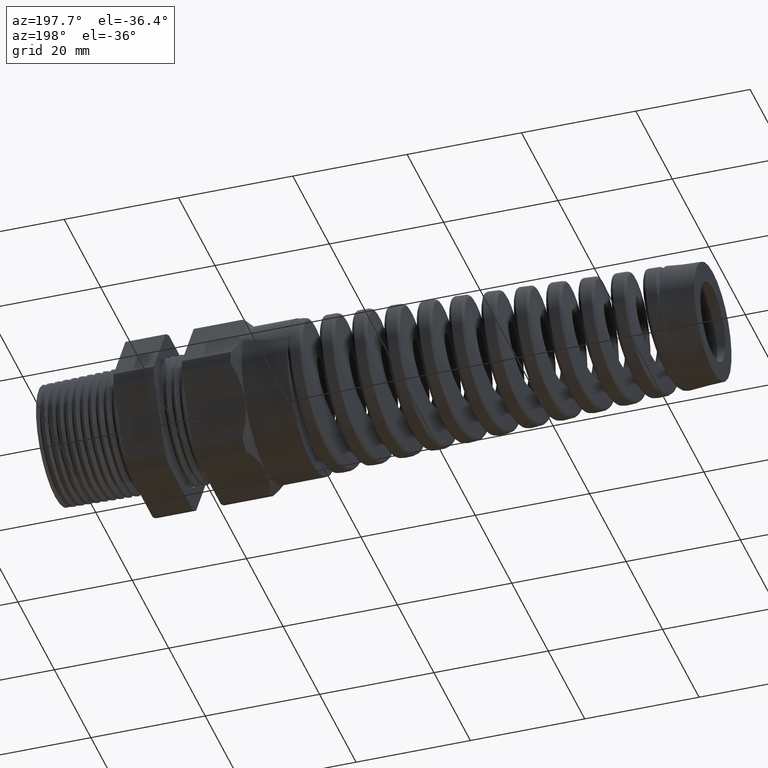
[diagram: clean part render]
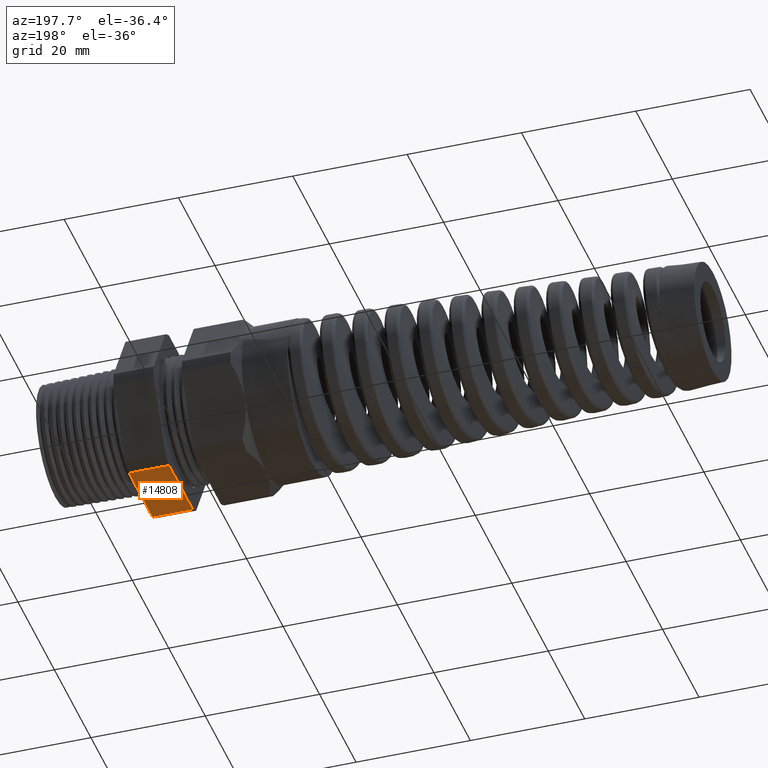
[diagram: same view with one face highlighted and labeled with its STEP entity id]
A machine part, auxiliary view. The second image highlights one B-rep face of the part: STEP entity #14808.
In plain terms, the highlighted planar face has unit normal (0, 0, -1).
Its self-contained STEP definition (entity closure, byte-faithful):
#7917 = CARTESIAN_POINT ( 'NONE',  ( -0.5855905511811022600, -0.2553368167734531000, -0.5300000000000001400 ) ) ;
#7988 = CARTESIAN_POINT ( 'NONE',  ( -0.5855905511811022600, 0.2553368167734530500, -0.5300000000000001400 ) ) ;
#8987 = CARTESIAN_POINT ( 'NONE',  ( -0.3100000000000000000, 0.2553368167734530500, -0.5300000000000001400 ) ) ;
#9044 = DIRECTION ( 'NONE',  ( 0.0000000000000000000, 1.000000000000000000, 0.0000000000000000000 ) ) ;
#9045 = VECTOR ( 'NONE', #9044, 39.37007874015748100 ) ;
#9046 = CARTESIAN_POINT ( 'NONE',  ( -0.3100000000000000000, 1.060000000000000100, -0.5300000000000001400 ) ) ;
#9047 = LINE ( 'NONE', #9046, #9045 ) ;
#9054 = CARTESIAN_POINT ( 'NONE',  ( -0.3100000000000000000, -0.2553368167734531000, -0.5300000000000001400 ) ) ;
#10897 = DIRECTION ( 'NONE',  ( -1.000000000000000000, 0.0000000000000000000, 0.0000000000000000000 ) ) ;
#10898 = DIRECTION ( 'NONE',  ( 0.0000000000000000000, 0.0000000000000000000, -1.000000000000000000 ) ) ;
#10899 = CARTESIAN_POINT ( 'NONE',  ( 0.2800000000000000300, 0.2553368167734531000, -0.5300000000000001400 ) ) ;
#10900 = AXIS2_PLACEMENT_3D ( 'NONE', #10899, #10898, #10897 ) ;
#10901 = PLANE ( 'NONE',  #10900 ) ;
#10902 = FACE_OUTER_BOUND ( 'NONE', #14809, .T. ) ;
#10903 = DIRECTION ( 'NONE',  ( -1.000000000000000000, 0.0000000000000000000, 0.0000000000000000000 ) ) ;
#10904 = VECTOR ( 'NONE', #10903, 39.37007874015748100 ) ;
#10905 = CARTESIAN_POINT ( 'NONE',  ( 0.2800000000000000300, -0.2553368167734531000, -0.5300000000000001400 ) ) ;
#10909 = LINE ( 'NONE', #10905, #10904 ) ;
#11059 = DIRECTION ( 'NONE',  ( 0.0000000000000000000, -1.000000000000000000, 0.0000000000000000000 ) ) ;
#11060 = VECTOR ( 'NONE', #11059, 39.37007874015748100 ) ;
#11061 = CARTESIAN_POINT ( 'NONE',  ( -0.5855905511811022600, 1.060000000000000100, -0.5300000000000001400 ) ) ;
#11062 = LINE ( 'NONE', #11061, #11060 ) ;
#11306 = DIRECTION ( 'NONE',  ( -1.000000000000000000, 0.0000000000000000000, 0.0000000000000000000 ) ) ;
#11307 = VECTOR ( 'NONE', #11306, 39.37007874015748100 ) ;
#11308 = CARTESIAN_POINT ( 'NONE',  ( 0.2800000000000000300, 0.2553368167734530500, -0.5300000000000001400 ) ) ;
#11310 = LINE ( 'NONE', #11308, #11307 ) ;
#13462 = VERTEX_POINT ( 'NONE', #7917 ) ;
#13464 = VERTEX_POINT ( 'NONE', #7988 ) ;
#13896 = VERTEX_POINT ( 'NONE', #8987 ) ;
#13920 = VERTEX_POINT ( 'NONE', #9054 ) ;
#13921 = EDGE_CURVE ( 'NONE', #13920, #13896, #9047, .T. ) ;
#14806 = EDGE_CURVE ( 'NONE', #13920, #13462, #10909, .T. ) ;
#14808 = ADVANCED_FACE ( 'NONE', ( #10902 ), #10901, .T. ) ;
#14809 = EDGE_LOOP ( 'NONE', ( #14810, #14863, #14864, #14866 ) ) ;
#14810 = ORIENTED_EDGE ( 'NONE', *, *, #14806, .T. ) ;
#14863 = ORIENTED_EDGE ( 'NONE', *, *, #18910, .F. ) ;
#14864 = ORIENTED_EDGE ( 'NONE', *, *, #14865, .F. ) ;
#14865 = EDGE_CURVE ( 'NONE', #13896, #13464, #11310, .T. ) ;
#14866 = ORIENTED_EDGE ( 'NONE', *, *, #13921, .F. ) ;
#18910 = EDGE_CURVE ( 'NONE', #13464, #13462, #11062, .T. ) ;